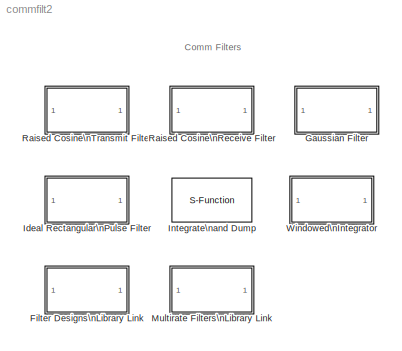
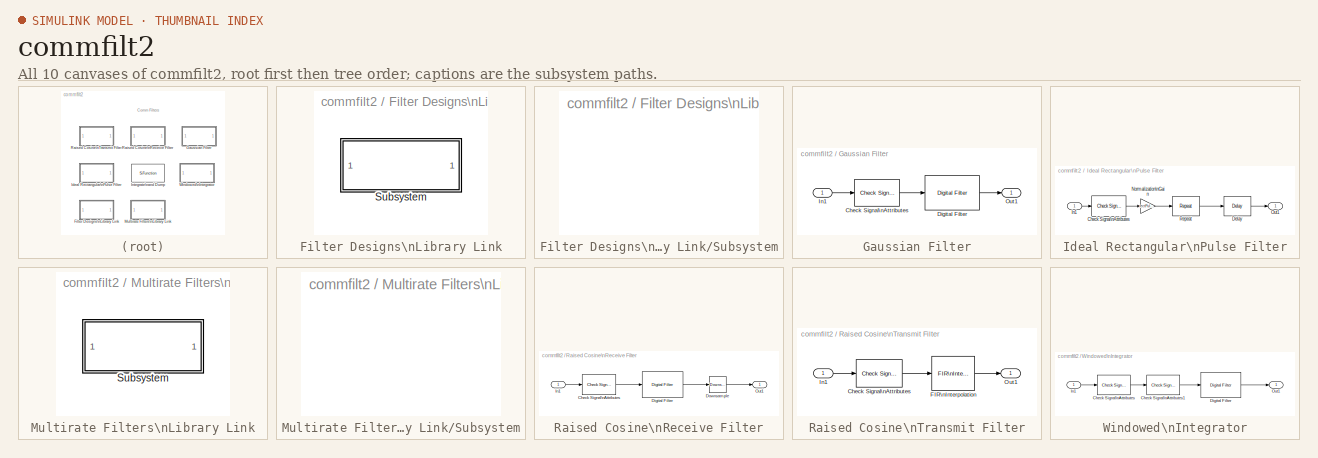
[diagram: thumbnail index - all 10 canvases of the model, root first then tree order]
MODEL commfilt2
KIND library
BLOCK [SubSystem] Filter Designs\nLibrary Link
  MaskDisplay = disp('Filter\\n Designs Link');
  MaskEnableString = off
  MaskIconFrame = on
  MaskIconOpaque = on
  MaskIconRotate = none
  MaskIconUnits = normalized
  MaskPromptString = option:
  MaskSelfModifiable = on
  MaskStyleString = edit
  MaskToolTipString = on
  MaskTunableValueString = on
  MaskType = Link to Filter Designs Library
  MaskValueString = 0
  MaskVariables = myFiltDesignsParam=@1;
  MaskVisibilityString = off
  MinAlgLoopOccurrences = off
  OpenFcn = commblkmorefilt('dsparch');
  Ports = []
  PropExecContextAcrossSSBoundary = on
  RTWSystemCode = Auto
  TreatAsAtomicUnit = off
BLOCK [SubSystem] Filter Designs\nLibrary Link/Subsystem
  MaskDisplay = disp(' ')
  MaskIconFrame = off
  MaskIconOpaque = on
  MaskIconRotate = none
  MaskIconUnits = autoscale
  MinAlgLoopOccurrences = off
  Ports = []
  PropExecContextAcrossSSBoundary = on
  RTWSystemCode = Auto
  TreatAsAtomicUnit = off
BLOCK [SubSystem] Gaussian Filter
  CopyFcn = commblkgaussfilt(gcb,'cbCopyFcn');
  MaskCallbackString = |||commblkgaussfilt(gcb,'cbSampMode');|||commblkgaussfilt(gcb,'cbCheckCoeff');||
  MaskDescription = Filter the input signal using a Gaussian FIR filter.\n\nThe group delay is specified as the number of symbol periods between the start of the filter response and its peak. This delay also determines the length of the filter impulse response, which is 2 * N * Group delay + 1.
  MaskDisplay = plot(0,0,1,1,icon.xx,icon.plot); text(icon.x,icon.y,icon.str,'horiz','center');
  MaskEnableString = on,on,on,on,on,on,on,on,on
  MaskHelp = helpview(commbhelp);
  MaskIconFrame = on
  MaskIconOpaque = on
  MaskIconRotate = none
  MaskIconUnits = normalized
  MaskInitialization = [hFilt,icon,msg] = commblkgaussfilt(gcb,'init');\nif(~isempty(msg))\n	error(msg);\nend\n\n%-- Open FVtool\nif strcmp(get_param(bdroot(gcb),'simulationstatus'),'stopped')\nlnkfvtool2mask(gcb);\nend
  MaskPromptString = Input samples per symbol (N):|BT product:|Group delay (number of symbols):|Input sampling mode:|Filter coefficient normalization:|Linear amplitude filter gain:|Export filter coefficients to workspace|Coefficient variable name:|Launch Filter Visualization Tool (FVTool)
  MaskSelfModifiable = on
  MaskStyleString = edit,edit,edit,popup(Frame-based|Sample-based),popup(Sum of coefficients|Filter energy|Peak amplitude),edit,checkbox,edit,checkbox
  MaskTabNameString = ,,,,,,,,
  MaskToolTipString = on,on,on,on,on,on,on,on,on
  MaskTunableValueString = on,on,on,on,on,on,on,on,on
  MaskType = Gaussian Filter
  MaskValueString = 8|0.3|2|Frame-based|Sum of coefficients|1|Off|gaussFilt|Off
  MaskVarAliasString = ,,,,,,,,
  MaskVariables = N=@1;BT=@2;D=@3;sampMode=@4;normMode=@5;filterGain=@6;checkCoeff=@7;variableName=&8;launchFVT=@9;
  MaskVisibilityString = on,on,on,on,on,on,on,off,on
  MinAlgLoopOccurrences = off
  Ports = [1, 1]
  PropExecContextAcrossSSBoundary = on
  RTWSystemCode = Auto
  TreatAsAtomicUnit = off
BLOCK [Reference] Gaussian Filter/Check Signal\nAttributes  REF=dspsigattribs/Check Signal\nAttributes
  Complexity = Ignore
  DatatypeCheckMethod = Ignore
  DatatypeGeneral = Boolean
  Dimensions = Column vector (2-D) or scalar
  DimsCheckMethod = Is...
  DtypeFixedSpecific = Any fixed-point
  DtypeFloatSpecific = Any floating-point
  DtypeIntSpecific = Any integer
  Frame = Frame-based
  Ports = [1, 1]
  SampleMode = Ignore
  ShowPortLabels = on
  SigAttribCheckMethod = Does not match attributes exactly
  SourceBlock = dspsigattribs/Check Signal\nAttributes
  SourceType = Check Signal Attributes
BLOCK [Reference] Gaussian Filter/Digital Filter  REF=dsparch4/Digital Filter
  AllPoleFiltStruct = Direct form
  BiQuadCoeffs = [1 0.3 0.4 1 0.1 0.2]
  CoeffSource = Specify via dialog
  DenCoeffs = [1]
  FIRFiltStruct = Direct form
  FiltPerSampPopup = One filter per frame
  IC = 0
  ICden = 0
  ICnum = 0
  IIRFiltStruct = Direct form II transposed
  LatticeCoeffs = [0.2 0.4]
  NumCoeffs = hFilt.coeff
  Ports = [1, 1]
  SourceBlock = dsparch4/Digital Filter
  SourceType = Digital Filter
  TypePopup = FIR (all zeros)
  accumFracLength = 30
  accumMode = Same as product output
  accumWordLength = 32
  additionalParams = off
  allowOverrides = on
  denIgnore = on
  firstCoeffFracLength = 15
  firstCoeffMode = Same as input
  firstCoeffWordLength = 16
  memoryFracLength = 15
  memoryMode = Same as input
  memoryWordLength = 16
  outputFracLength = 15
  outputMode = Same as input
  outputWordLength = 16
  overflowMode = off
  prodOutputFracLength = 30
  prodOutputMode = Same as input
  prodOutputWordLength = 32
  roundingMode = Floor
  secondCoeffFracLength = 15
  secondCoeffMode = Same as numerator
  secondCoeffWordLength = 16
  showAcc = off
  showCoeff = off
  showMem = off
  showMpy = off
  showOut = off
  thirdCoeffFracLength = 15
  thirdCoeffMode = Same as input
  thirdCoeffWordLength = 16
BLOCK [Inport] Gaussian Filter/In1
  IconDisplay = Port number
  LatchInput = off
BLOCK [Outport] Gaussian Filter/Out1
  BusOutputAsStruct = off
  IconDisplay = Port number
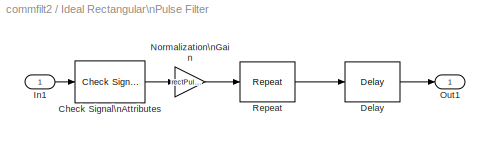
BLOCK [SubSystem] Ideal Rectangular\nPulse Filter
  CopyFcn = commblkrectpulse(gcb,'cbCopyFcn');
  MaskCallbackString = ||commblkrectpulse(gcb,'cbSampMode');|commblkrectpulse(gcb,'cbNormCheck');||
  MaskDescription = Upsample the input signal using ideal rectangular pulses.\n\nThis block replicates each input sample N times, where N is the pulse length. This block can also normalize the output signal and apply a linear amplitude gain.
  MaskDisplay = plot(0,0,100,100,[95 5 10 10 10 reshape(([85*[0:1/15:1-1/15]+10; 85*[1/15:1/15:1]+10]),1,30)],[75 75 75 70 95 90 90 90 90 90 90 90 90 80 80 80 80 80 80 80 80 80 80 90 90 90 90 90 90 90 90 80 80 80 80]*1.1-10);\ntext(50,35,'Rectangular\\nPulse Filter','horiz','center');
  MaskEnableString = on,on,on,on,on,on
  MaskHelp = helpview(commbhelp);
  MaskIconFrame = on
  MaskIconOpaque = on
  MaskIconRotate = none
  MaskIconUnits = autoscale
  MaskInitialization = [rectPul,msg] = commblkrectpulse(gcb,'init');\nif(~isempty(msg))\n	error(msg);\nend
  MaskPromptString = Pulse length (number of samples):|Pulse delay (number of samples):|Input sampling mode:|Normalize output signal|Normalization method:|Linear amplitude gain:
  MaskSelfModifiable = on
  MaskStyleString = edit,edit,popup(Frame-based|Sample-based),checkbox,popup(Sum of samples|Energy per pulse),edit
  MaskTabNameString = ,,,,,
  MaskToolTipString = on,on,on,on,on,on
  MaskTunableValueString = on,on,on,on,on,on
  MaskType = Ideal Rectangular Pulse Filter
  MaskValueString = 8|0|Frame-based|on|Sum of samples|1
  MaskVarAliasString = ,,,,,
  MaskVariables = pulseLen=@1;pulseDelay=@2;sampMode=@3;normCheck=@4;normMode=@5;filterGain=@6;
  MaskVisibilityString = on,on,on,on,on,on
  MinAlgLoopOccurrences = off
  Ports = [1, 1]
  PropExecContextAcrossSSBoundary = on
  RTWSystemCode = Auto
  TreatAsAtomicUnit = off
BLOCK [Reference] Ideal Rectangular\nPulse Filter/Check Signal\nAttributes  REF=dspsigattribs/Check Signal\nAttributes
  Complexity = Ignore
  DatatypeCheckMethod = Ignore
  DatatypeGeneral = Boolean
  Dimensions = Column vector (2-D) or scalar
  DimsCheckMethod = Is...
  DtypeFixedSpecific = Any fixed-point
  DtypeFloatSpecific = Any floating-point
  DtypeIntSpecific = Any integer
  Frame = Frame-based
  Ports = [1, 1]
  SampleMode = Ignore
  ShowPortLabels = on
  SigAttribCheckMethod = Does not match attributes exactly
  SourceBlock = dspsigattribs/Check Signal\nAttributes
  SourceType = Check Signal Attributes
BLOCK [Reference] Ideal Rectangular\nPulse Filter/Delay  REF=dspsigops/Delay
  Ports = [1, 1]
  SourceBlock = dspsigops/Delay
  SourceType = Delay
  delay = rectPul.pulseDelay
  dif_ic_for_ch = off
  dif_ic_for_dly = off
  dly_unit = Samples
  ic = 0
  ic_detail = off
  reset_popup = None
BLOCK [Inport] Ideal Rectangular\nPulse Filter/In1
  IconDisplay = Port number
  LatchInput = off
BLOCK [Gain] Ideal Rectangular\nPulse Filter/Normalization\nGain
  Gain = rectPul.gain
BLOCK [Outport] Ideal Rectangular\nPulse Filter/Out1
  BusOutputAsStruct = off
  IconDisplay = Port number
BLOCK [Reference] Ideal Rectangular\nPulse Filter/Repeat  REF=dspsigops/Repeat
  N = rectPul.pulseLen
  Ports = [1, 1]
  SourceBlock = dspsigops/Repeat
  SourceType = Repeat
  ic = 0
  mode = Maintain input frame rate
BLOCK [S-Function] Integrate\nand Dump
  FunctionName = scomintegdump
  MaskCallbackString = ||
  MaskDescription = Integrate over number of samples in integration period and reset at the end of integration. \n\nFrame based K x L input is treated as L channels each of frame size K.\nThe samples are integrated along every column. \n\nOffset samples are ignored during the first integration period.
  MaskDisplay = disp('Integrate\\nand Dump')
  MaskEnableString = on,on,on
  MaskHelp = helpview(commbhelp);
  MaskIconFrame = on
  MaskIconOpaque = on
  MaskIconRotate = none
  MaskIconUnits = autoscale
  MaskPromptString = Integration period (number of samples):|Offset (number of samples):|Output intermediate values
  MaskStyleString = edit,edit,checkbox
  MaskTabNameString = ,,
  MaskToolTipString = on,on,on
  MaskTunableValueString = on,on,on
  MaskType = Integrate and dump
  MaskValueString = 8|0|off
  MaskVarAliasString = ,,
  MaskVariables = obssamples=@1;offsetsamples=@2;nodump=@3;
  MaskVisibilityString = on,on,on
  Parameters = obssamples, offsetsamples, nodump
  Ports = [1, 1]
BLOCK [SubSystem] Multirate Filters\nLibrary Link
  MaskDisplay = disp('Multirate\\nFilters Link');
  MaskEnableString = off
  MaskIconFrame = on
  MaskIconOpaque = on
  MaskIconRotate = none
  MaskIconUnits = normalized
  MaskPromptString = option:
  MaskSelfModifiable = on
  MaskStyleString = edit
  MaskToolTipString = on
  MaskTunableValueString = on
  MaskType = Link to Multirate Filters Library
  MaskValueString = 0
  MaskVariables = myMultirateFiltersParam=@1;
  MaskVisibilityString = off
  MinAlgLoopOccurrences = off
  OpenFcn = commblkmorefilt('dspmlti');
  Ports = []
  PropExecContextAcrossSSBoundary = on
  RTWSystemCode = Auto
  TreatAsAtomicUnit = off
BLOCK [SubSystem] Multirate Filters\nLibrary Link/Subsystem
  MaskDisplay = disp(' ')
  MaskIconFrame = off
  MaskIconOpaque = on
  MaskIconRotate = none
  MaskIconUnits = autoscale
  MinAlgLoopOccurrences = off
  Ports = []
  PropExecContextAcrossSSBoundary = on
  RTWSystemCode = Auto
  TreatAsAtomicUnit = off
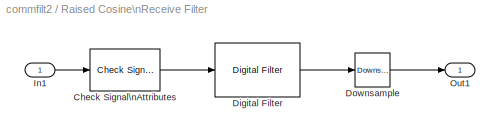
BLOCK [SubSystem] Raised Cosine\nReceive Filter
  CopyFcn = commblkrcfilt(gcb,'cbCopyFcn');
  MaskCallbackString = ||||commblkrcfilt(gcb,'cbSampMode','RX');|commblkrcfilt(gcb,'cbRateMode');|||commblkrcfilt(gcb,'cbCheckGain');||commblkrcfilt(gcb,'cbCheckCoeff');||
  MaskDescription = Filter the input signal, and downsample if selected, using a normal or square root raised cosine FIR filter.\n\nThe group delay is specified as the number of symbol periods between the start of the filter response and its peak. This delay also determines the length of the filter impulse response, which is 2 * N * Group delay + 1.\n\nIn normalized mode, the coefficients of the normal raised cosine ...<+271ch>
  MaskDisplay = plot(0,0,1,1,icon.xx,icon.plot); text(icon.x,icon.y,icon.str,'horiz','center');
  MaskEnableString = on,on,on,on,on,on,on,on,on,on,on,on,on
  MaskHelp = helpview(commbhelp);
  MaskIconFrame = on
  MaskIconOpaque = on
  MaskIconRotate = none
  MaskIconUnits = normalized
  MaskInitialization = [hFilt,icon,msg] = commblkrcfilt(gcb,'init','RX');\nif(~isempty(msg))\n	error(msg);\nend\n\n%-- Open FVtool\nif strcmp(get_param(bdroot(gcb),'simulationstatus'),'stopped')\nlnkfvtool2mask(gcb);\nend\n
  MaskPromptString = Filter type:|Input samples per symbol (N):|Group delay (number of symbols):|Rolloff factor (0 to 1):|Input sampling mode:|Output mode:|Downsampling factor (L):|Sample offset (0 to L-1):|Filter gain:|Linear amplitude filter gain:|Export filter coefficients to workspace|Coefficient variable name:|Launch Filter Visualization Tool (FVTool)
  MaskSelfModifiable = on
  MaskStyleString = popup(Normal|Square root),edit,edit,edit,popup(Frame-based|Sample-based),popup(Downsampling|None),edit,edit,popup(Normalized|User-specified),edit,checkbox,edit,checkbox
  MaskTabNameString = ,,,,,,,,,,,,
  MaskToolTipString = on,on,on,on,on,on,on,on,on,on,on,on,on
  MaskTunableValueString = on,on,on,on,on,on,on,on,on,on,on,on,on
  MaskType = Raised Cosine Receive Filter
  MaskValueString = Square root|8|4|0.2|Frame-based|Downsampling|8|0|Normalized|1|off|rcRxFilt|off
  MaskVarAliasString = ,,,,,,,,,,,,
  MaskVariables = filtType=@1;N=@2;D=@3;R=@4;sampMode=@5;rateMode=@6;downFactor=@7;downOffset=@8;checkGain=@9;filterGain=@10;checkCoeff=@11;variableName=&12;launchFVT=@13;
  MaskVisibilityString = on,on,on,on,on,on,on,on,on,off,on,off,on
  MinAlgLoopOccurrences = off
  Ports = [1, 1]
  PropExecContextAcrossSSBoundary = on
  RTWSystemCode = Auto
  TreatAsAtomicUnit = off
BLOCK [Reference] Raised Cosine\nReceive Filter/Check Signal\nAttributes  REF=dspsigattribs/Check Signal\nAttributes
  Complexity = Ignore
  DatatypeCheckMethod = Ignore
  DatatypeGeneral = Boolean
  Dimensions = Column vector (2-D) or scalar
  DimsCheckMethod = Is...
  DtypeFixedSpecific = Any fixed-point
  DtypeFloatSpecific = Any floating-point
  DtypeIntSpecific = Any integer
  Frame = Frame-based
  Ports = [1, 1]
  SampleMode = Ignore
  ShowPortLabels = on
  SigAttribCheckMethod = Does not match attributes exactly
  SourceBlock = dspsigattribs/Check Signal\nAttributes
  SourceType = Check Signal Attributes
BLOCK [Reference] Raised Cosine\nReceive Filter/Digital Filter  REF=dsparch4/Digital Filter
  AllPoleFiltStruct = Direct form
  BiQuadCoeffs = [1 0.3 0.4 1 0.1 0.2]
  CoeffSource = Specify via dialog
  DenCoeffs = [1]
  FIRFiltStruct = Direct form
  FiltPerSampPopup = One filter per frame
  IC = 0
  ICden = 0
  ICnum = 0
  IIRFiltStruct = Direct form II transposed
  LatticeCoeffs = [0.2 0.4]
  NumCoeffs = hFilt.coeff
  Ports = [1, 1]
  SourceBlock = dsparch4/Digital Filter
  SourceType = Digital Filter
  TypePopup = FIR (all zeros)
  accumFracLength = 30
  accumMode = Same as product output
  accumWordLength = 32
  additionalParams = off
  allowOverrides = on
  denIgnore = on
  firstCoeffFracLength = 15
  firstCoeffMode = Same as input
  firstCoeffWordLength = 16
  memoryFracLength = 15
  memoryMode = Same as input
  memoryWordLength = 16
  outputFracLength = 15
  outputMode = Same as input
  outputWordLength = 16
  overflowMode = off
  prodOutputFracLength = 30
  prodOutputMode = Same as input
  prodOutputWordLength = 32
  roundingMode = Floor
  secondCoeffFracLength = 15
  secondCoeffMode = Same as numerator
  secondCoeffWordLength = 16
  showAcc = off
  showCoeff = off
  showMem = off
  showMpy = off
  showOut = off
  thirdCoeffFracLength = 15
  thirdCoeffMode = Same as input
  thirdCoeffWordLength = 16
BLOCK [Reference] Raised Cosine\nReceive Filter/Downsample  REF=dspsigops/Downsample
  N = hFilt.rateFactor
  Ports = [1, 1]
  SourceBlock = dspsigops/Downsample
  SourceType = Downsample
  fmode = Maintain input frame rate
  ic = 0
  phase = hFilt.downOffset
  smode = Allow multirate
BLOCK [Inport] Raised Cosine\nReceive Filter/In1
  IconDisplay = Port number
  LatchInput = off
BLOCK [Outport] Raised Cosine\nReceive Filter/Out1
  BusOutputAsStruct = off
  IconDisplay = Port number
BLOCK [SubSystem] Raised Cosine\nTransmit Filter
  CopyFcn = commblkrcfilt(gcb,'cbCopyFcn');
  MaskCallbackString = |||commblkrcfilt(gcb,'cbSampMode','TX');||commblkrcfilt(gcb,'cbCheckGain');||commblkrcfilt(gcb,'cbCheckCoeff');||
  MaskDescription = Upsample and filter the input signal using a normal or square root raised cosine FIR filter.\n\nThe group delay is specified as the number of symbol periods between the start of the filter response and its peak. This delay also determines the length of the filter impulse response, which is 2 * N * Group delay + 1.\n\nIn normalized mode, the coefficients of the normal raised cosine filter are norma...<+255ch>
  MaskDisplay = plot(0,0,1,1,icon.xx,icon.plot); text(icon.x,icon.y,icon.str,'horiz','center');
  MaskEnableString = on,on,on,on,on,on,on,on,on,on
  MaskHelp = helpview(commbhelp);
  MaskIconFrame = on
  MaskIconOpaque = on
  MaskIconRotate = none
  MaskIconUnits = normalized
  MaskInitialization = [hFilt,icon,msg] = commblkrcfilt(gcb,'init','TX');\nif(~isempty(msg))\n	error(msg);\nend\n\n%-- Open FVtool\nif strcmp(get_param(bdroot(gcb),'simulationstatus'),'stopped')\nlnkfvtool2mask(gcb);\nend
  MaskPromptString = Filter type:|Group delay (number of symbols):|Rolloff factor (0 to 1):|Input sampling mode:|Upsampling factor (N):|Filter gain:|Linear amplitude filter gain:|Export filter coefficients to workspace|Coefficient variable name:|Launch Filter Visualization Tool (FVTool)
  MaskSelfModifiable = on
  MaskStyleString = popup(Normal|Square root),edit,edit,popup(Frame-based|Sample-based),edit,popup(Normalized|User-specified),edit,checkbox,edit,checkbox
  MaskTabNameString = ,,,,,,,,,
  MaskToolTipString = on,on,on,on,on,on,on,on,on,on
  MaskTunableValueString = on,on,on,on,on,on,on,on,on,on
  MaskType = Raised Cosine Transmit Filter
  MaskValueString = Square root|4|0.2|Frame-based|8|Normalized|1|off|rcTxFilt|off
  MaskVarAliasString = ,,,,,,,,,
  MaskVariables = filtType=@1;D=@2;R=@3;sampMode=@4;N=@5;checkGain=@6;filterGain=@7;checkCoeff=@8;variableName=&9;launchFVT=@10;
  MaskVisibilityString = on,on,on,on,on,on,off,on,off,on
  MinAlgLoopOccurrences = off
  Ports = [1, 1]
  PropExecContextAcrossSSBoundary = on
  RTWSystemCode = Auto
  TreatAsAtomicUnit = off
BLOCK [Reference] Raised Cosine\nTransmit Filter/Check Signal\nAttributes  REF=dspsigattribs/Check Signal\nAttributes
  Complexity = Ignore
  DatatypeCheckMethod = Ignore
  DatatypeGeneral = Boolean
  Dimensions = Column vector (2-D) or scalar
  DimsCheckMethod = Is...
  DtypeFixedSpecific = Any fixed-point
  DtypeFloatSpecific = Any floating-point
  DtypeIntSpecific = Any integer
  Frame = Frame-based
  Ports = [1, 1]
  SampleMode = Ignore
  ShowPortLabels = on
  SigAttribCheckMethod = Does not match attributes exactly
  SourceBlock = dspsigattribs/Check Signal\nAttributes
  SourceType = Check Signal Attributes
BLOCK [Reference] Raised Cosine\nTransmit Filter/FIR\nInterpolation  REF=dspmlti3/FIR\nInterpolation
  DialogController = dspDDGCreate
  DialogControllerArgs = DataTag0
  L = hFilt.rateFactor
  Ports = [1, 1]
  SourceBlock = dspmlti3/FIR\nInterpolation
  SourceType = FIR Interpolation
  accumFracLength = 30
  accumMode = Inherit via internal rule
  accumWordLength = 32
  additionalParams = off
  allowOverrides = on
  firstCoeffFracLength = 15
  firstCoeffMode = Same word length as input
  firstCoeffWordLength = 16
  framing = Maintain input frame rate
  h = hFilt.coeff
  outputBufInitCond = 0
  outputFracLength = 15
  outputMode = Same as input
  outputWordLength = 16
  overflowMode = off
  prodOutputFracLength = 30
  prodOutputMode = Inherit via internal rule
  prodOutputWordLength = 32
  roundingMode = Floor
BLOCK [Inport] Raised Cosine\nTransmit Filter/In1
  IconDisplay = Port number
  LatchInput = off
BLOCK [Outport] Raised Cosine\nTransmit Filter/Out1
  BusOutputAsStruct = off
  IconDisplay = Port number
BLOCK [SubSystem] Windowed\nIntegrator
  ErrorFcn = commblkwinintegchk
  MaskCallbackString = \n
  MaskDescription = Integrate a discrete input signal over the sliding window of size equal to the integration period.
  MaskDisplay = disp('Windowed\\nIntegrator');
  MaskEnableString = on
  MaskHelp = helpview(commbhelp);
  MaskIconFrame = on
  MaskIconOpaque = on
  MaskIconRotate = none
  MaskIconUnits = autoscale
  MaskInitialization = msg = commblkwininteg(gcb);\nif(~isempty(msg))\n	error(msg);\nend
  MaskPromptString = Integration period (number of samples):
  MaskSelfModifiable = on
  MaskStyleString = edit
  MaskToolTipString = on
  MaskTunableValueString = on
  MaskType = Windowed Integrator
  MaskValueString = 8
  MaskVariables = integperiod=@1;
  MaskVisibilityString = on
  MinAlgLoopOccurrences = off
  Ports = [1, 1]
  PropExecContextAcrossSSBoundary = on
  RTWSystemCode = Auto
  ShowPortLabels = off
  TreatAsAtomicUnit = off
BLOCK [Reference] Windowed\nIntegrator/Check Signal\nAttributes  REF=dspsigattribs/Check Signal\nAttributes
  Complexity = Ignore
  DatatypeCheckMethod = Ignore
  DatatypeGeneral = Boolean
  Dimensions = Vector (1-D or 2-D)
  DimsCheckMethod = Is...
  DtypeFixedSpecific = Any fixed-point
  DtypeFloatSpecific = Any floating-point
  DtypeIntSpecific = Any integer
  Frame = Sample-based
  Ports = [1, 1]
  SampleMode = Ignore
  ShowPortLabels = on
  SigAttribCheckMethod = Matches attributes exactly
  SourceBlock = dspsigattribs/Check Signal\nAttributes
  SourceType = Check Signal Attributes
BLOCK [Reference] Windowed\nIntegrator/Check Signal\nAttributes1  REF=dspsigattribs/Check Signal\nAttributes
  Complexity = Ignore
  DatatypeCheckMethod = Ignore
  DatatypeGeneral = Boolean
  Dimensions = Full matrix (2-D)
  DimsCheckMethod = Is...
  DtypeFixedSpecific = Any fixed-point
  DtypeFloatSpecific = Any floating-point
  DtypeIntSpecific = Any integer
  Frame = Sample-based
  Ports = [1, 1]
  SampleMode = Ignore
  ShowPortLabels = on
  SigAttribCheckMethod = Matches attributes exactly
  SourceBlock = dspsigattribs/Check Signal\nAttributes
  SourceType = Check Signal Attributes
BLOCK [Reference] Windowed\nIntegrator/Digital Filter  REF=dsparch4/Digital Filter
  AllPoleFiltStruct = Direct form
  BiQuadCoeffs = [1 0.3 0.4 1 0.1 0.2]
  CoeffSource = Specify via dialog
  DenCoeffs = 1
  DialogController = dspDDGCreate
  DialogControllerArgs = DataTag1
  FIRFiltStruct = Direct form
  FiltPerSampPopup = One filter per frame
  IC = 0
  ICden = 0
  ICnum = 0
  IIRFiltStruct = Direct form I
  LatticeCoeffs = [0.2 0.4]
  NumCoeffs = ones(1,integperiod)
  Ports = [1, 1]
  ScaleValues = 1
  SourceBlock = dsparch4/Digital Filter
  SourceType = Digital Filter
  TypePopup = FIR (all zeros)
  accumFracLength = 30
  accumMode = Same as product output
  accumWordLength = 32
  additionalParams = off
  allowOverrides = on
  denIgnore = on
  firstCoeffFracLength = 15
  firstCoeffMode = Same as input
  firstCoeffWordLength = 16
  memoryFracLength = 15
  memoryMode = Same as input
  memoryWordLength = 16
  outputFracLength = 15
  outputMode = Same as input
  outputWordLength = 16
  overflowMode = off
  prodOutputFracLength = 30
  prodOutputMode = Same as input
  prodOutputWordLength = 32
  roundingMode = Floor
  scaleValueFracLength = 14
  secondCoeffFracLength = 15
  secondCoeffMode = Same as numerator
  secondCoeffWordLength = 16
  showAcc = off
  showCoeff = off
  showMem = off
  showMpy = off
  showOut = off
  stageIOMode = Same as input
  stageIOWordLength = 16
  stageInFracLength = 15
  stageOutFracLength = 15
  tapSumFracLength = 30
  tapSumMode = Same as input
  tapSumWordLength = 32
  thirdCoeffFracLength = 15
  thirdCoeffMode = Same as input
  thirdCoeffWordLength = 16
BLOCK [Inport] Windowed\nIntegrator/In1
  IconDisplay = Port number
  LatchInput = off
BLOCK [Outport] Windowed\nIntegrator/Out1
  BusOutputAsStruct = off
  IconDisplay = Port number
ANNOTATION (root): Comm Filters
LINE Gaussian Filter/Check Signal\nAttributes:1 -> Gaussian Filter/Digital Filter:1
LINE Gaussian Filter/Digital Filter:1 -> Gaussian Filter/Out1:1
LINE Gaussian Filter/In1:1 -> Gaussian Filter/Check Signal\nAttributes:1
LINE Ideal Rectangular\nPulse Filter/Check Signal\nAttributes:1 -> Ideal Rectangular\nPulse Filter/Normalization\nGain:1
LINE Ideal Rectangular\nPulse Filter/Delay:1 -> Ideal Rectangular\nPulse Filter/Out1:1
LINE Ideal Rectangular\nPulse Filter/In1:1 -> Ideal Rectangular\nPulse Filter/Check Signal\nAttributes:1
LINE Ideal Rectangular\nPulse Filter/Normalization\nGain:1 -> Ideal Rectangular\nPulse Filter/Repeat:1
LINE Ideal Rectangular\nPulse Filter/Repeat:1 -> Ideal Rectangular\nPulse Filter/Delay:1
LINE Raised Cosine\nReceive Filter/Check Signal\nAttributes:1 -> Raised Cosine\nReceive Filter/Digital Filter:1
LINE Raised Cosine\nReceive Filter/Digital Filter:1 -> Raised Cosine\nReceive Filter/Downsample:1
LINE Raised Cosine\nReceive Filter/Downsample:1 -> Raised Cosine\nReceive Filter/Out1:1
LINE Raised Cosine\nReceive Filter/In1:1 -> Raised Cosine\nReceive Filter/Check Signal\nAttributes:1
LINE Raised Cosine\nTransmit Filter/Check Signal\nAttributes:1 -> Raised Cosine\nTransmit Filter/FIR\nInterpolation:1
LINE Raised Cosine\nTransmit Filter/FIR\nInterpolation:1 -> Raised Cosine\nTransmit Filter/Out1:1
LINE Raised Cosine\nTransmit Filter/In1:1 -> Raised Cosine\nTransmit Filter/Check Signal\nAttributes:1
LINE Windowed\nIntegrator/Check Signal\nAttributes1:1 -> Windowed\nIntegrator/Digital Filter:1
LINE Windowed\nIntegrator/Check Signal\nAttributes:1 -> Windowed\nIntegrator/Check Signal\nAttributes1:1
LINE Windowed\nIntegrator/Digital Filter:1 -> Windowed\nIntegrator/Out1:1
LINE Windowed\nIntegrator/In1:1 -> Windowed\nIntegrator/Check Signal\nAttributes:1
